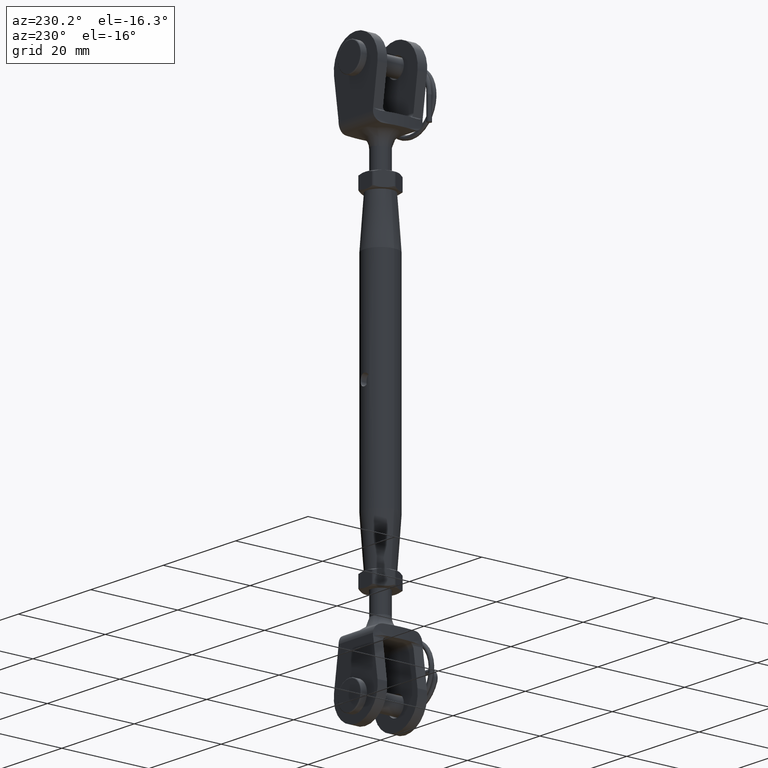
[diagram: clean part render]
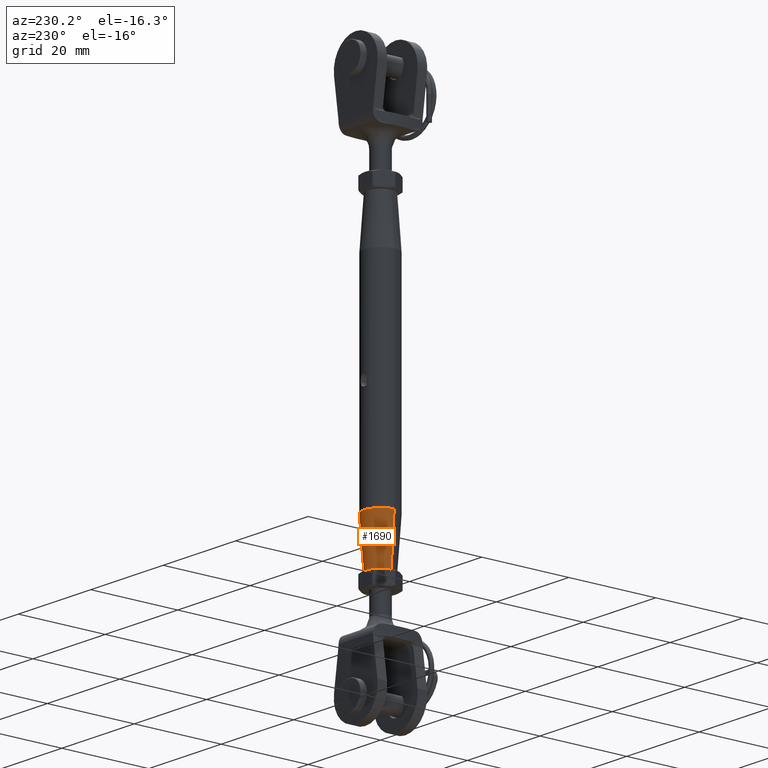
[diagram: same view with one face highlighted and labeled with its STEP entity id]
A machine part, auxiliary view. The second image highlights one B-rep face of the part: STEP entity #1690.
In plain terms, the highlighted conical surface has half-angle 4.16 deg.
Its self-contained STEP definition (entity closure, byte-faithful):
#1079 = AXIS2_PLACEMENT_3D ( 'NONE', #27747, #1787, #23476 ) ;
#1617 = LINE ( 'NONE', #2450, #11098 ) ;
#1690 = ADVANCED_FACE ( 'NONE', ( #17111 ), #25929, .T. ) ;
#1787 = DIRECTION ( 'NONE',  ( -0.0000000000000000000, -0.0000000000000000000, 1.000000000000000000 ) ) ;
#2191 = DIRECTION ( 'NONE',  ( 1.000000000000000000, 0.0000000000000000000, 0.0000000000000000000 ) ) ;
#2450 = CARTESIAN_POINT ( 'NONE',  ( -2.950000000000000200, 3.612708057484692100E-016, -35.00000000000000000 ) ) ;
#2510 = DIRECTION ( 'NONE',  ( 1.000000000000000000, 0.0000000000000000000, 0.0000000000000000000 ) ) ;
#4526 = CARTESIAN_POINT ( 'NONE',  ( 3.749999999999993800, 0.0000000000000000000, -24.00000000000000700 ) ) ;
#4988 = ORIENTED_EDGE ( 'NONE', *, *, #17051, .T. ) ;
#5235 = EDGE_CURVE ( 'NONE', #27471, #15053, #7402, .T. ) ;
#6577 = DIRECTION ( 'NONE',  ( -0.0000000000000000000, -0.0000000000000000000, 1.000000000000000000 ) ) ;
#6866 = CARTESIAN_POINT ( 'NONE',  ( 0.0000000000000000000, 0.0000000000000000000, -24.00000000000000700 ) ) ;
#6924 = CARTESIAN_POINT ( 'NONE',  ( 2.950000000000000200, 0.0000000000000000000, -35.00000000000000000 ) ) ;
#7402 = LINE ( 'NONE', #25605, #27422 ) ;
#7911 = ORIENTED_EDGE ( 'NONE', *, *, #28116, .F. ) ;
#8331 = VERTEX_POINT ( 'NONE', #18835 ) ;
#8681 = EDGE_CURVE ( 'NONE', #25256, #8331, #1617, .T. ) ;
#9625 = CIRCLE ( 'NONE', #1079, 2.950000000000000200 ) ;
#9704 = AXIS2_PLACEMENT_3D ( 'NONE', #6866, #6577, #2510 ) ;
#10678 = ORIENTED_EDGE ( 'NONE', *, *, #5235, .F. ) ;
#10968 = DIRECTION ( 'NONE',  ( -0.07253569577882081100, 8.883060765945908400E-018, 0.9973658169587938900 ) ) ;
#11092 = DIRECTION ( 'NONE',  ( -0.0000000000000000000, -0.0000000000000000000, 1.000000000000000000 ) ) ;
#11098 = VECTOR ( 'NONE', #10968, 1000.000000000000000 ) ;
#12394 = CIRCLE ( 'NONE', #9704, 3.749999999999993800 ) ;
#13067 = CARTESIAN_POINT ( 'NONE',  ( 0.0000000000000000000, 0.0000000000000000000, -35.00000000000000000 ) ) ;
#15053 = VERTEX_POINT ( 'NONE', #4526 ) ;
#15728 = ORIENTED_EDGE ( 'NONE', *, *, #8681, .T. ) ;
#17051 = EDGE_CURVE ( 'NONE', #27471, #25256, #9625, .T. ) ;
#17111 = FACE_OUTER_BOUND ( 'NONE', #21615, .T. ) ;
#18835 = CARTESIAN_POINT ( 'NONE',  ( -3.749999999999993800, 4.592425496802567100E-016, -24.00000000000000700 ) ) ;
#19356 = DIRECTION ( 'NONE',  ( 0.07253569577882081100, 0.0000000000000000000, 0.9973658169587938900 ) ) ;
#20448 = AXIS2_PLACEMENT_3D ( 'NONE', #13067, #11092, #2191 ) ;
#21476 = CARTESIAN_POINT ( 'NONE',  ( -2.950000000000000200, 4.102566777143629300E-016, -35.00000000000000000 ) ) ;
#21615 = EDGE_LOOP ( 'NONE', ( #4988, #15728, #7911, #10678 ) ) ;
#23476 = DIRECTION ( 'NONE',  ( 1.000000000000000000, 0.0000000000000000000, 0.0000000000000000000 ) ) ;
#25256 = VERTEX_POINT ( 'NONE', #21476 ) ;
#25605 = CARTESIAN_POINT ( 'NONE',  ( 2.950000000000000200, 0.0000000000000000000, -35.00000000000000000 ) ) ;
#25929 = CONICAL_SURFACE ( 'NONE', #20448, 2.950000000000000200, 0.07259945373049406200 ) ;
#27422 = VECTOR ( 'NONE', #19356, 1000.000000000000000 ) ;
#27471 = VERTEX_POINT ( 'NONE', #6924 ) ;
#27747 = CARTESIAN_POINT ( 'NONE',  ( 0.0000000000000000000, 0.0000000000000000000, -35.00000000000000000 ) ) ;
#28116 = EDGE_CURVE ( 'NONE', #15053, #8331, #12394, .T. ) ;